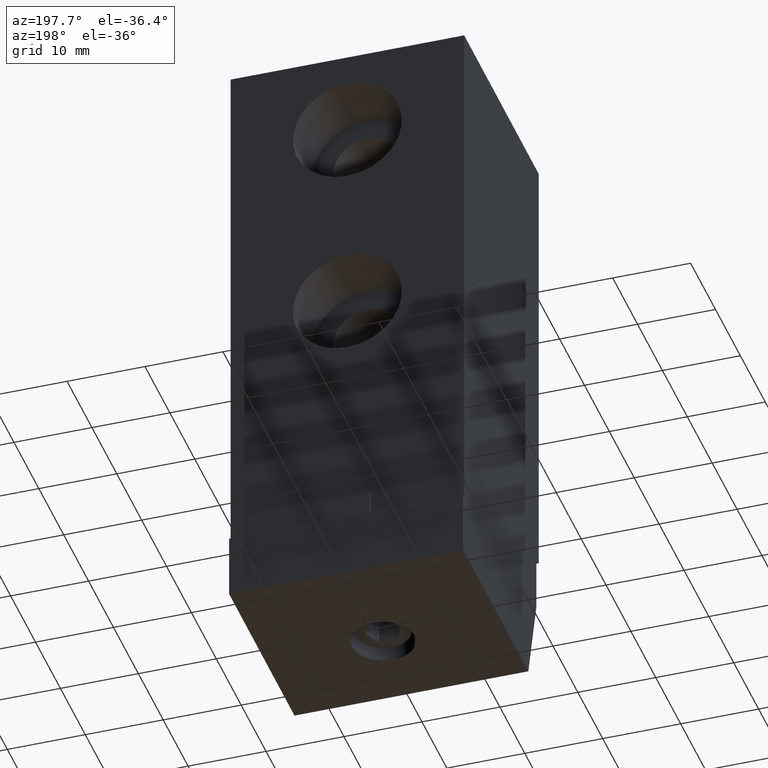
[diagram: clean part render]
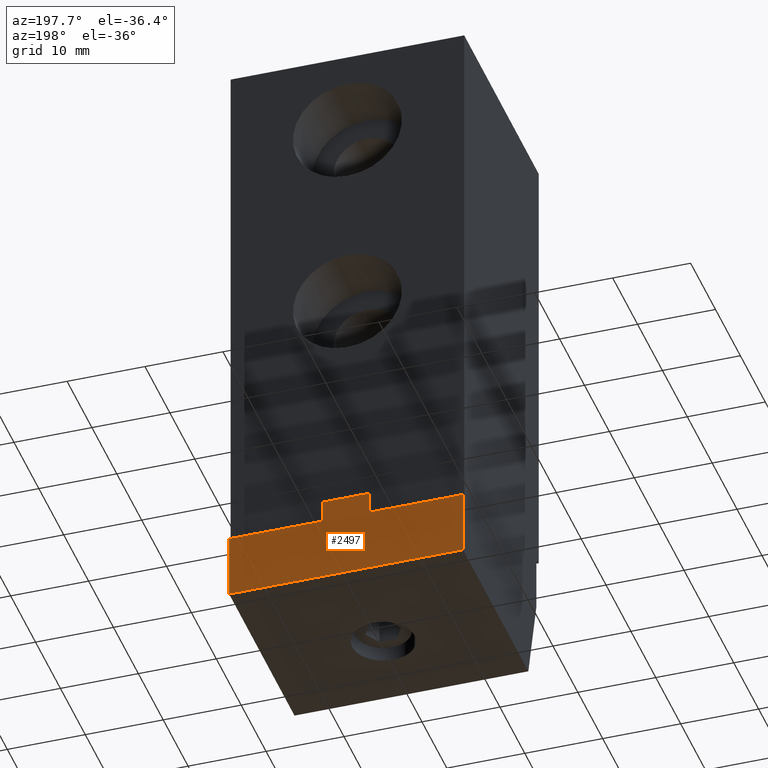
[diagram: same view with one face highlighted and labeled with its STEP entity id]
A machine part, auxiliary view. The second image highlights one B-rep face of the part: STEP entity #2497.
In plain terms, the highlighted planar face has unit normal (0, -1, 0).
Its self-contained STEP definition (entity closure, byte-faithful):
#641=DIRECTION('',(0.E0,7.655271561933E-14,-1.E0));
#642=VECTOR('',#641,1.131212592789E-1);
#643=CARTESIAN_POINT('',(1.181102362205E-1,1.201417322835E0,-2.646579602790E0));
#644=LINE('',#643,#642);
#1090=DIRECTION('',(-1.E0,0.E0,0.E0));
#1091=VECTOR('',#1090,1.181102362205E0);
#1092=CARTESIAN_POINT('',(5.905511811024E-1,1.201417322835E0,-3.09E0));
#1093=LINE('',#1092,#1091);
#1118=DIRECTION('',(1.E0,1.691979889529E-14,0.E0));
#1119=VECTOR('',#1118,4.724409448819E-1);
#1120=CARTESIAN_POINT('',(1.181102362205E-1,1.201417322835E0,
-2.759700862069E0));
#1121=LINE('',#1120,#1119);
#1188=DIRECTION('',(0.E0,2.487336307832E-14,-1.E0));
#1189=VECTOR('',#1188,3.302991379315E-1);
#1190=CARTESIAN_POINT('',(-5.905511811024E-1,1.201417322835E0,
-2.759700862069E0));
#1191=LINE('',#1190,#1189);
#1195=DIRECTION('',(0.E0,-1.075604889873E-14,1.E0));
#1196=VECTOR('',#1195,3.302991379315E-1);
#1197=CARTESIAN_POINT('',(5.905511811024E-1,1.201417322835E0,-3.09E0));
#1198=LINE('',#1197,#1196);
#1202=DIRECTION('',(-1.E0,0.E0,-6.203926261604E-14));
#1203=VECTOR('',#1202,2.362204724410E-1);
#1204=CARTESIAN_POINT('',(1.181102362205E-1,1.201417322835E0,
-2.646579602790E0));
#1205=LINE('',#1204,#1203);
#1209=DIRECTION('',(0.E0,3.140624230538E-14,-1.E0));
#1210=VECTOR('',#1209,1.131212592788E-1);
#1211=CARTESIAN_POINT('',(-1.181102362205E-1,1.201417322835E0,
-2.646579602790E0));
#1212=LINE('',#1211,#1210);
#1216=DIRECTION('',(-1.E0,0.E0,-1.062187375093E-13));
#1217=VECTOR('',#1216,4.724409448819E-1);
#1218=CARTESIAN_POINT('',(-1.181102362205E-1,1.201417322835E0,
-2.759700862068E0));
#1219=LINE('',#1218,#1217);
#1432=CARTESIAN_POINT('',(5.905511811024E-1,1.201417322835E0,-3.09E0));
#1433=VERTEX_POINT('',#1432);
#1434=CARTESIAN_POINT('',(-5.905511811024E-1,1.201417322835E0,-3.09E0));
#1435=VERTEX_POINT('',#1434);
#1523=CARTESIAN_POINT('',(1.181102362205E-1,1.201417322835E0,
-2.646579602790E0));
#1524=CARTESIAN_POINT('',(-1.181102362205E-1,1.201417322835E0,
-2.646579602790E0));
#1525=VERTEX_POINT('',#1523);
#1526=VERTEX_POINT('',#1524);
#1527=CARTESIAN_POINT('',(-1.181102362205E-1,1.201417322835E0,
-2.759700862068E0));
#1528=VERTEX_POINT('',#1527);
#1529=CARTESIAN_POINT('',(-5.905511811024E-1,1.201417322835E0,
-2.759700862069E0));
#1530=VERTEX_POINT('',#1529);
#1533=CARTESIAN_POINT('',(5.905511811024E-1,1.201417322835E0,
-2.759700862069E0));
#1534=VERTEX_POINT('',#1533);
#1535=CARTESIAN_POINT('',(1.181102362205E-1,1.201417322835E0,
-2.759700862069E0));
#1536=VERTEX_POINT('',#1535);
#2479=CARTESIAN_POINT('',(-5.905511811024E-1,1.201417322835E0,
-2.223858267717E0));
#2480=DIRECTION('',(0.E0,-1.E0,0.E0));
#2481=DIRECTION('',(0.E0,0.E0,1.E0));
#2482=AXIS2_PLACEMENT_3D('',#2479,#2480,#2481);
#2483=PLANE('',#2482);
#2485=ORIENTED_EDGE('',*,*,#2484,.T.);
#2486=ORIENTED_EDGE('',*,*,#2396,.F.);
#2487=ORIENTED_EDGE('',*,*,#2430,.T.);
#2488=ORIENTED_EDGE('',*,*,#2445,.F.);
#2489=ORIENTED_EDGE('',*,*,#1984,.F.);
#2490=ORIENTED_EDGE('',*,*,#2004,.T.);
#2492=ORIENTED_EDGE('',*,*,#2491,.T.);
#2494=ORIENTED_EDGE('',*,*,#2493,.T.);
#2495=EDGE_LOOP('',(#2485,#2486,#2487,#2488,#2489,#2490,#2492,#2494));
#2496=FACE_OUTER_BOUND('',#2495,.F.);
#2497=ADVANCED_FACE('',(#2496),#2483,.F.);
#1984=EDGE_CURVE('',#1525,#1536,#644,.T.);
#2004=EDGE_CURVE('',#1525,#1526,#1205,.T.);
#2396=EDGE_CURVE('',#1433,#1435,#1093,.T.);
#2430=EDGE_CURVE('',#1433,#1534,#1198,.T.);
#2445=EDGE_CURVE('',#1536,#1534,#1121,.T.);
#2484=EDGE_CURVE('',#1530,#1435,#1191,.T.);
#2491=EDGE_CURVE('',#1526,#1528,#1212,.T.);
#2493=EDGE_CURVE('',#1528,#1530,#1219,.T.);